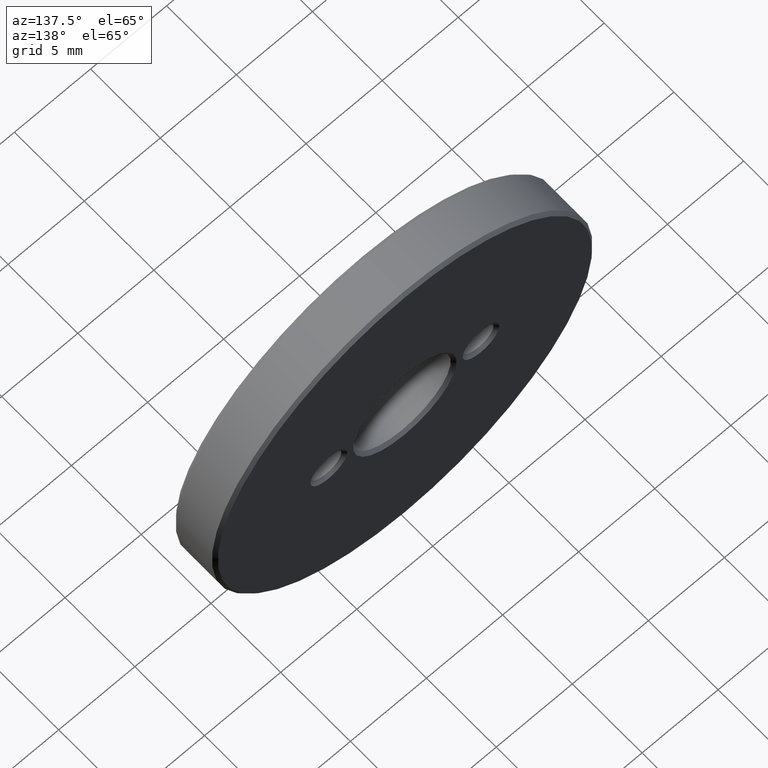
[diagram: clean part render]
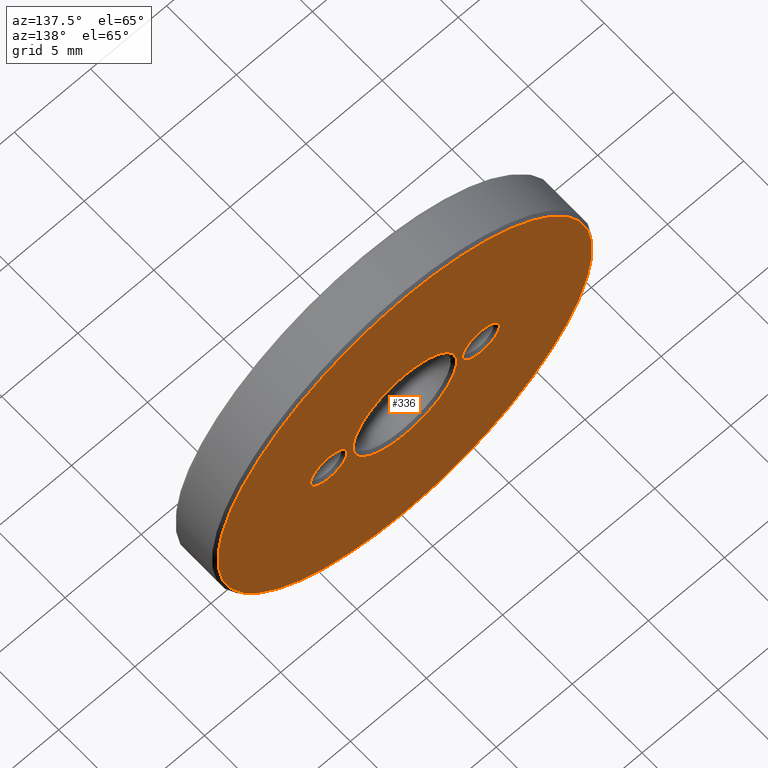
[diagram: same view with one face highlighted and labeled with its STEP entity id]
A machine part, auxiliary view. The second image highlights one B-rep face of the part: STEP entity #336.
In plain terms, the highlighted planar face has unit normal (0, 1, 0).
Its self-contained STEP definition (entity closure, byte-faithful):
#7 = AXIS2_PLACEMENT_3D ( 'NONE', #277, #182, #374 ) ;
#11 = CARTESIAN_POINT ( 'NONE',  ( 0.000000000000000000, 3.000000000000000000, 0.000000000000000000 ) ) ;
#16 = FACE_BOUND ( 'NONE', #380, .T. ) ;
#25 = DIRECTION ( 'NONE',  ( 0.000000000000000000, 1.000000000000000000, 0.000000000000000000 ) ) ;
#32 = CIRCLE ( 'NONE', #348, 12.30000000000000249 ) ;
#38 = VERTEX_POINT ( 'NONE', #161 ) ;
#41 = CARTESIAN_POINT ( 'NONE',  ( 5.000000000000000000, 3.000000000000000000, -1.836970198721029194E-15 ) ) ;
#53 = DIRECTION ( 'NONE',  ( 0.000000000000000000, 0.000000000000000000, 1.000000000000000000 ) ) ;
#62 = EDGE_CURVE ( 'NONE', #383, #383, #32, .T. ) ;
#70 = EDGE_CURVE ( 'NONE', #99, #99, #222, .T. ) ;
#89 = DIRECTION ( 'NONE',  ( -0.000000000000000000, -1.000000000000000000, -0.000000000000000000 ) ) ;
#97 = AXIS2_PLACEMENT_3D ( 'NONE', #41, #376, #165 ) ;
#99 = VERTEX_POINT ( 'NONE', #224 ) ;
#101 = FACE_OUTER_BOUND ( 'NONE', #106, .T. ) ;
#106 = EDGE_LOOP ( 'NONE', ( #384 ) ) ;
#137 = CARTESIAN_POINT ( 'NONE',  ( 0.000000000000000000, 3.000000000000000000, 3.400000000000000355 ) ) ;
#150 = CARTESIAN_POINT ( 'NONE',  ( 0.000000000000000000, 3.000000000000000000, 0.000000000000000000 ) ) ;
#161 = CARTESIAN_POINT ( 'NONE',  ( 5.000000000000000000, 3.000000000000000000, 1.204999999999992522 ) ) ;
#164 = FACE_BOUND ( 'NONE', #205, .T. ) ;
#165 = DIRECTION ( 'NONE',  ( 0.000000000000000000, 0.000000000000000000, 1.000000000000000000 ) ) ;
#167 = VERTEX_POINT ( 'NONE', #137 ) ;
#168 = EDGE_LOOP ( 'NONE', ( #327 ) ) ;
#181 = CARTESIAN_POINT ( 'NONE',  ( -5.000000000000000000, 3.000000000000000000, 0.000000000000000000 ) ) ;
#182 = DIRECTION ( 'NONE',  ( -0.000000000000000000, -1.000000000000000000, -0.000000000000000000 ) ) ;
#188 = CIRCLE ( 'NONE', #97, 1.204999999999994298 ) ;
#205 = EDGE_LOOP ( 'NONE', ( #322 ) ) ;
#222 = CIRCLE ( 'NONE', #387, 1.205000000000004734 ) ;
#224 = CARTESIAN_POINT ( 'NONE',  ( -5.000000000000000000, 3.000000000000000000, 1.205000000000004734 ) ) ;
#239 = ORIENTED_EDGE ( 'NONE', *, *, #70, .T. ) ;
#257 = DIRECTION ( 'NONE',  ( 0.000000000000000000, -0.000000000000000000, 1.000000000000000000 ) ) ;
#268 = EDGE_CURVE ( 'NONE', #167, #167, #326, .T. ) ;
#277 = CARTESIAN_POINT ( 'NONE',  ( 0.000000000000000000, 3.000000000000000000, 0.000000000000000000 ) ) ;
#278 = AXIS2_PLACEMENT_3D ( 'NONE', #11, #281, #257 ) ;
#281 = DIRECTION ( 'NONE',  ( 0.000000000000000000, 1.000000000000000000, 0.000000000000000000 ) ) ;
#287 = CARTESIAN_POINT ( 'NONE',  ( 0.000000000000000000, 3.000000000000000000, 12.30000000000000249 ) ) ;
#322 = ORIENTED_EDGE ( 'NONE', *, *, #268, .T. ) ;
#326 = CIRCLE ( 'NONE', #7, 3.400000000000000355 ) ;
#327 = ORIENTED_EDGE ( 'NONE', *, *, #347, .T. ) ;
#336 = ADVANCED_FACE ( 'NONE', ( #16, #164, #101, #349 ), #357, .T. ) ;
#347 = EDGE_CURVE ( 'NONE', #38, #38, #188, .T. ) ;
#348 = AXIS2_PLACEMENT_3D ( 'NONE', #150, #25, #53 ) ;
#349 = FACE_BOUND ( 'NONE', #168, .T. ) ;
#357 = PLANE ( 'NONE',  #278 ) ;
#360 = DIRECTION ( 'NONE',  ( 0.000000000000000000, 0.000000000000000000, 1.000000000000000000 ) ) ;
#374 = DIRECTION ( 'NONE',  ( 0.000000000000000000, 0.000000000000000000, 1.000000000000000000 ) ) ;
#376 = DIRECTION ( 'NONE',  ( -0.000000000000000000, -1.000000000000000000, -0.000000000000000000 ) ) ;
#380 = EDGE_LOOP ( 'NONE', ( #239 ) ) ;
#383 = VERTEX_POINT ( 'NONE', #287 ) ;
#384 = ORIENTED_EDGE ( 'NONE', *, *, #62, .T. ) ;
#387 = AXIS2_PLACEMENT_3D ( 'NONE', #181, #89, #360 ) ;